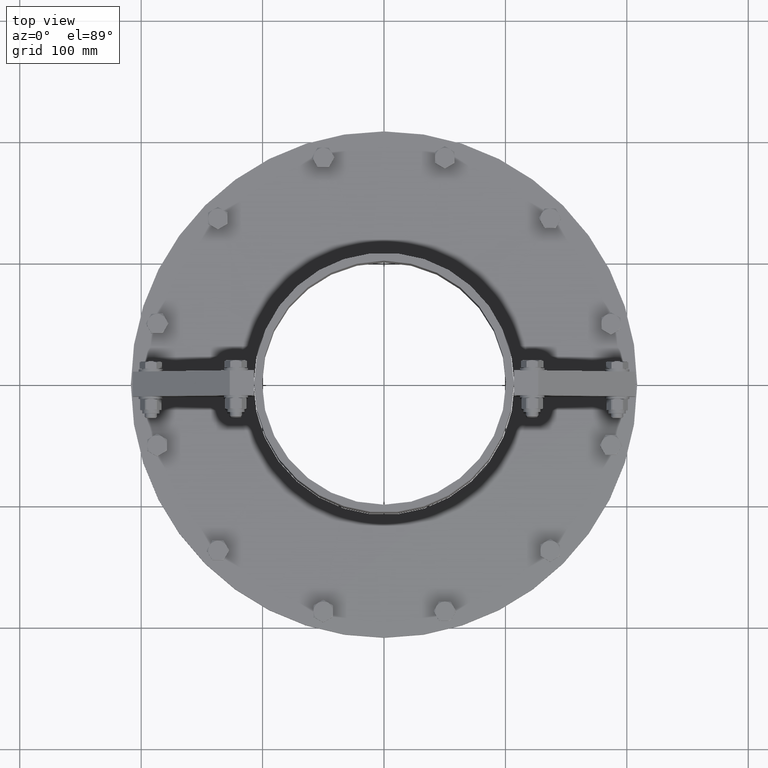
[diagram: clean part render]
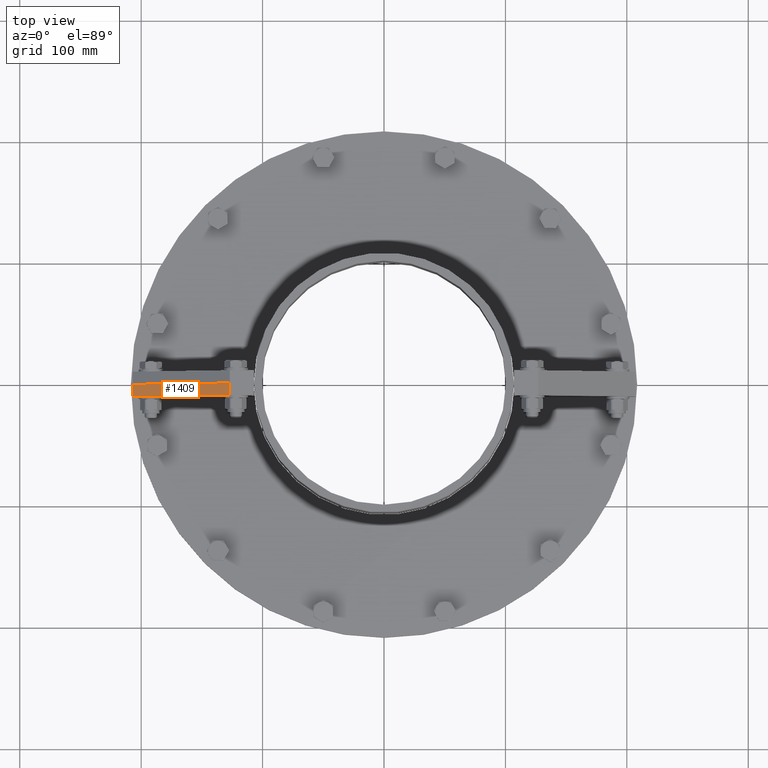
[diagram: same view with one face highlighted and labeled with its STEP entity id]
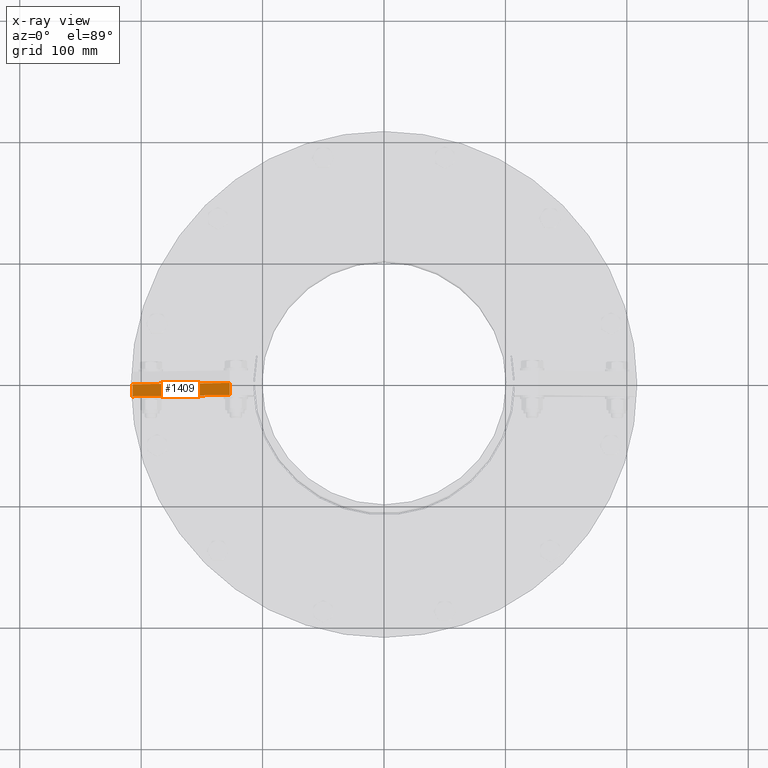
[diagram: x-ray of the same camera — body ghosted, the highlighted face saturated]
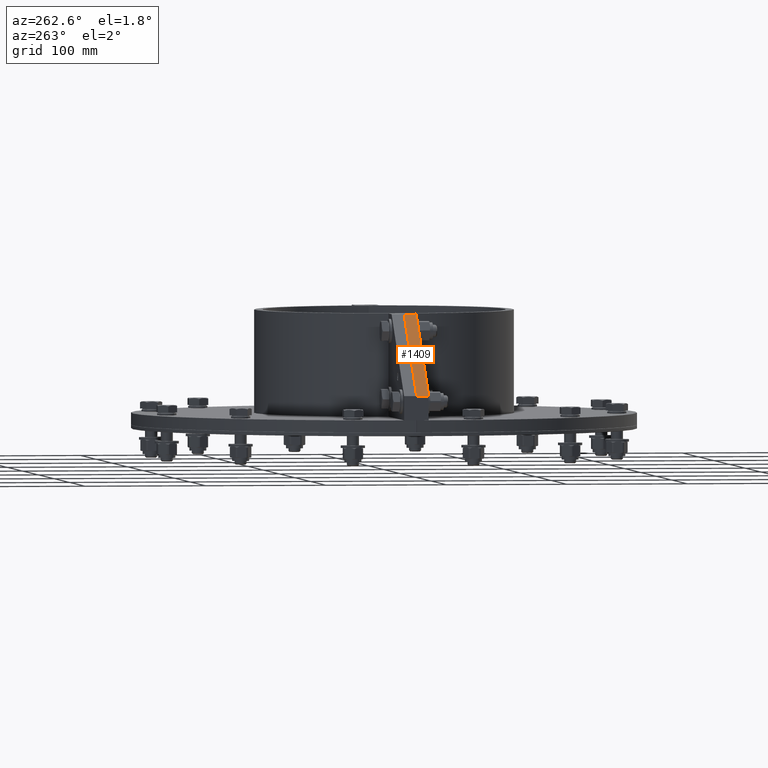
[diagram: same view with one face highlighted and labeled with its STEP entity id]
A machine part, top view. The second image highlights one B-rep face of the part: STEP entity #1409.
The next image is the same camera in x-ray: the body ghosted, the highlighted face saturated — about 0% of this face is hidden behind the body in this view.
A second angle (auxiliary view) of the same face is appended — the face is thin or edge-on in the first view.
In plain terms, the highlighted planar face has unit normal (-0.6306, -0, 0.7761).
Its self-contained STEP definition (entity closure, byte-faithful):
#1318=CARTESIAN_POINT('',(20.0,85.0,-5.0));
#1319=VERTEX_POINT('',#1318);
#1326=CARTESIAN_POINT('',(100.0,20.000000000000018,-5.0));
#1327=VERTEX_POINT('',#1326);
#1328=CARTESIAN_POINT('',(100.0,20.000000000000014,-5.0));
#1329=DIRECTION('',(-0.776114000116266,0.630592625094466,0.0));
#1330=VECTOR('',#1329,103.0776406404415);
#1331=LINE('',#1328,#1330);
#1332=EDGE_CURVE('',#1327,#1319,#1331,.T.);
#1362=CARTESIAN_POINT('',(20.0,85.0,5.0));
#1363=VERTEX_POINT('',#1362);
#1370=CARTESIAN_POINT('',(20.0,85.0,5.0));
#1371=DIRECTION('',(0.0,0.0,-1.0));
#1372=VECTOR('',#1371,10.0);
#1373=LINE('',#1370,#1372);
#1374=EDGE_CURVE('',#1363,#1319,#1373,.T.);
#1386=CARTESIAN_POINT('',(20.0,85.0,0.0));
#1387=DIRECTION('',(0.630592625094466,0.776114000116266,0.0));
#1388=DIRECTION('',(0.0,0.0,-1.0));
#1389=AXIS2_PLACEMENT_3D('',#1386,#1387,#1388);
#1390=PLANE('',#1389);
#1391=CARTESIAN_POINT('',(100.0,20.000000000000018,5.0));
#1392=VERTEX_POINT('',#1391);
#1393=CARTESIAN_POINT('',(20.0,85.0,5.0));
#1394=DIRECTION('',(0.776114000116266,-0.630592625094466,0.0));
#1395=VECTOR('',#1394,103.0776406404415);
#1396=LINE('',#1393,#1395);
#1397=EDGE_CURVE('',#1363,#1392,#1396,.T.);
#1398=ORIENTED_EDGE('',*,*,#1397,.T.);
#1399=CARTESIAN_POINT('',(100.0,20.000000000000018,5.0));
#1400=DIRECTION('',(0.0,0.0,-1.0));
#1401=VECTOR('',#1400,10.0);
#1402=LINE('',#1399,#1401);
#1403=EDGE_CURVE('',#1392,#1327,#1402,.T.);
#1404=ORIENTED_EDGE('',*,*,#1403,.T.);
#1405=ORIENTED_EDGE('',*,*,#1332,.T.);
#1406=ORIENTED_EDGE('',*,*,#1374,.F.);
#1407=EDGE_LOOP('',(#1398,#1404,#1405,#1406));
#1408=FACE_OUTER_BOUND('',#1407,.T.);
#1409=ADVANCED_FACE('',(#1408),#1390,.T.);